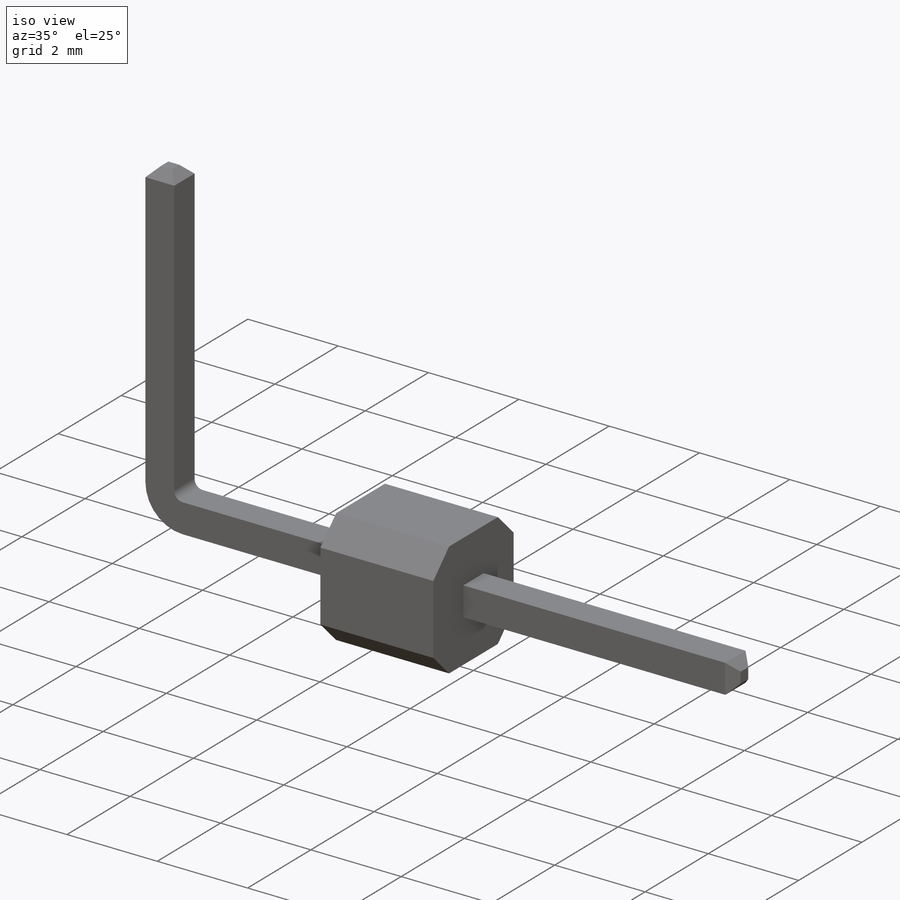
[diagram: iso view]
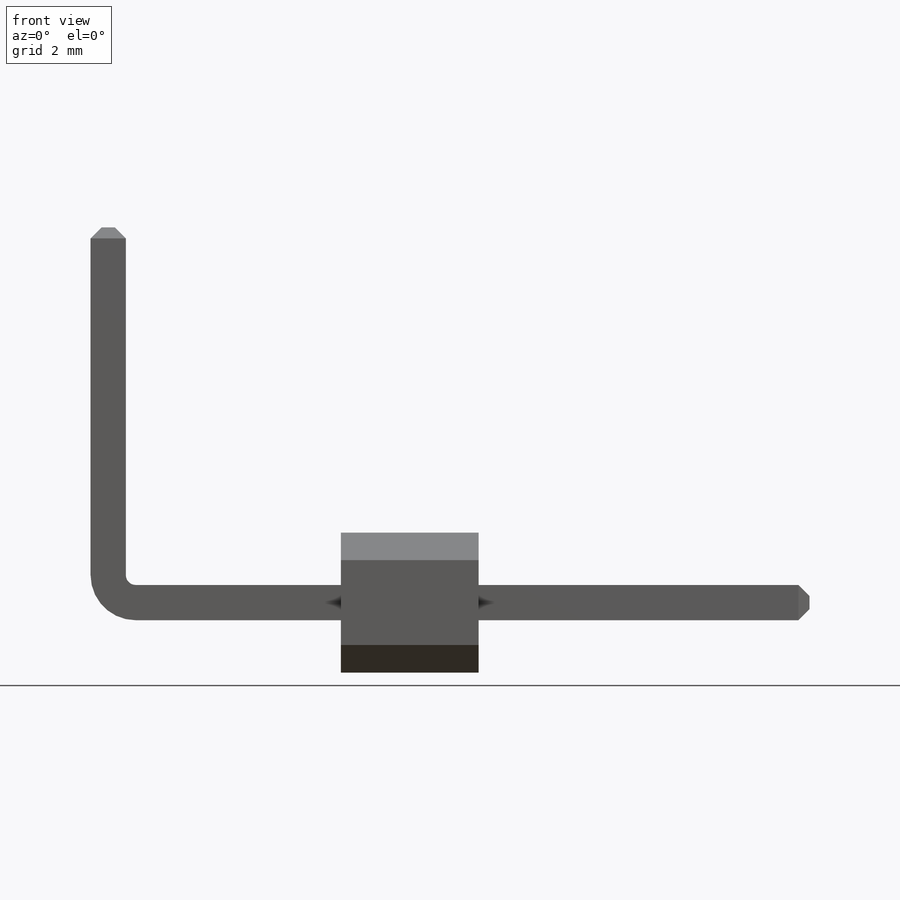
[diagram: front view]
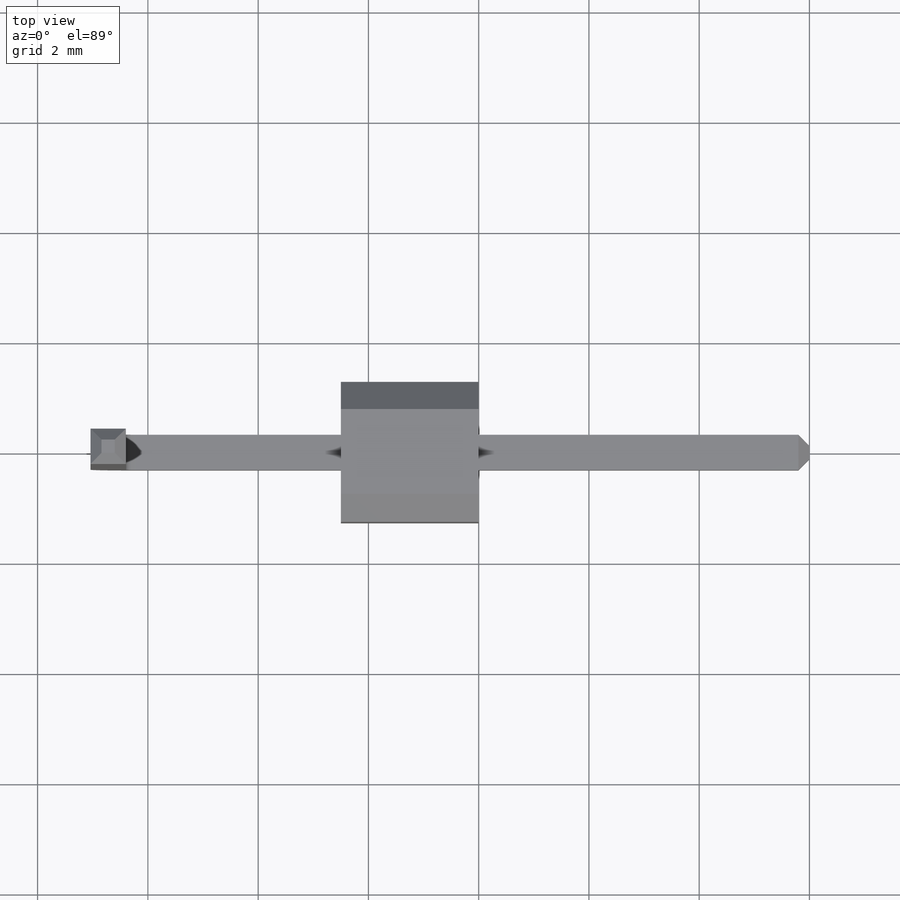
[diagram: top view]
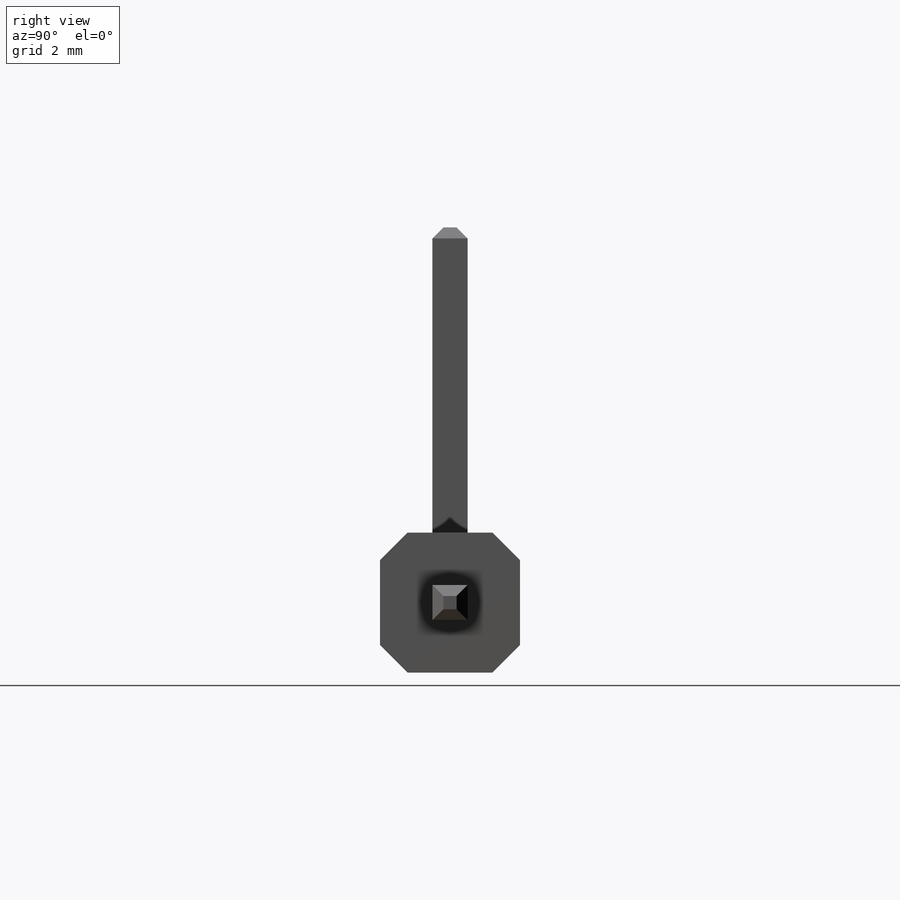
[diagram: right view]
SOLIDWORKS PART (.sldprt)
format: sldprt  version: not decoded by parser v0  size: 407,040 bytes
history: native  units: mm
features: sketch x5, plane x4, chamfer x3, sweep x2, material x1, extrude x1 (+8 scaffold rows collapsed)
feature tree (24):
  scaffold x8  (default folders/planes/origin — collapsed)
  material  "Материал <не указан>"
  plane  "Спереди"
  plane  "Сверху"
  plane  "Справа"
  sketch  "Эскиз1"  dims[D1=0.64mm]
  sketch  "Эскиз2"  dims[D2=0.5mm D1=12.72mm D3=~6.805604mm]
  sweep  "По траектории1"
  sketch  "Эскиз3"  dims[D1=0.5mm D2=2.54mm D3=~4.268648mm D4=10.18mm]
  sweep  "По траектории2"
  sketch  "Эскиз1<2>"
  plane  "Плоскость1"  Offset=6mm
  sketch  "Эскиз4"  dims[D1=2.54mm]
  extrude  "Бобышка-Вытянуть1"  Depth=2.5mm
  chamfer  "Фаска1"  Distance=0.5mm Angle=45deg
  chamfer  "Фаска2"  Distance=0.2mm Angle=45deg
  chamfer  "Фаска3"  Distance=0.2mm Angle=45deg
decode coverage: 8 of 11 modeling features carry decoded parameters
note: ~ marks probable driven/reference dimensions
note: suppression state not decoded; provenance and decode notes live in map.json
